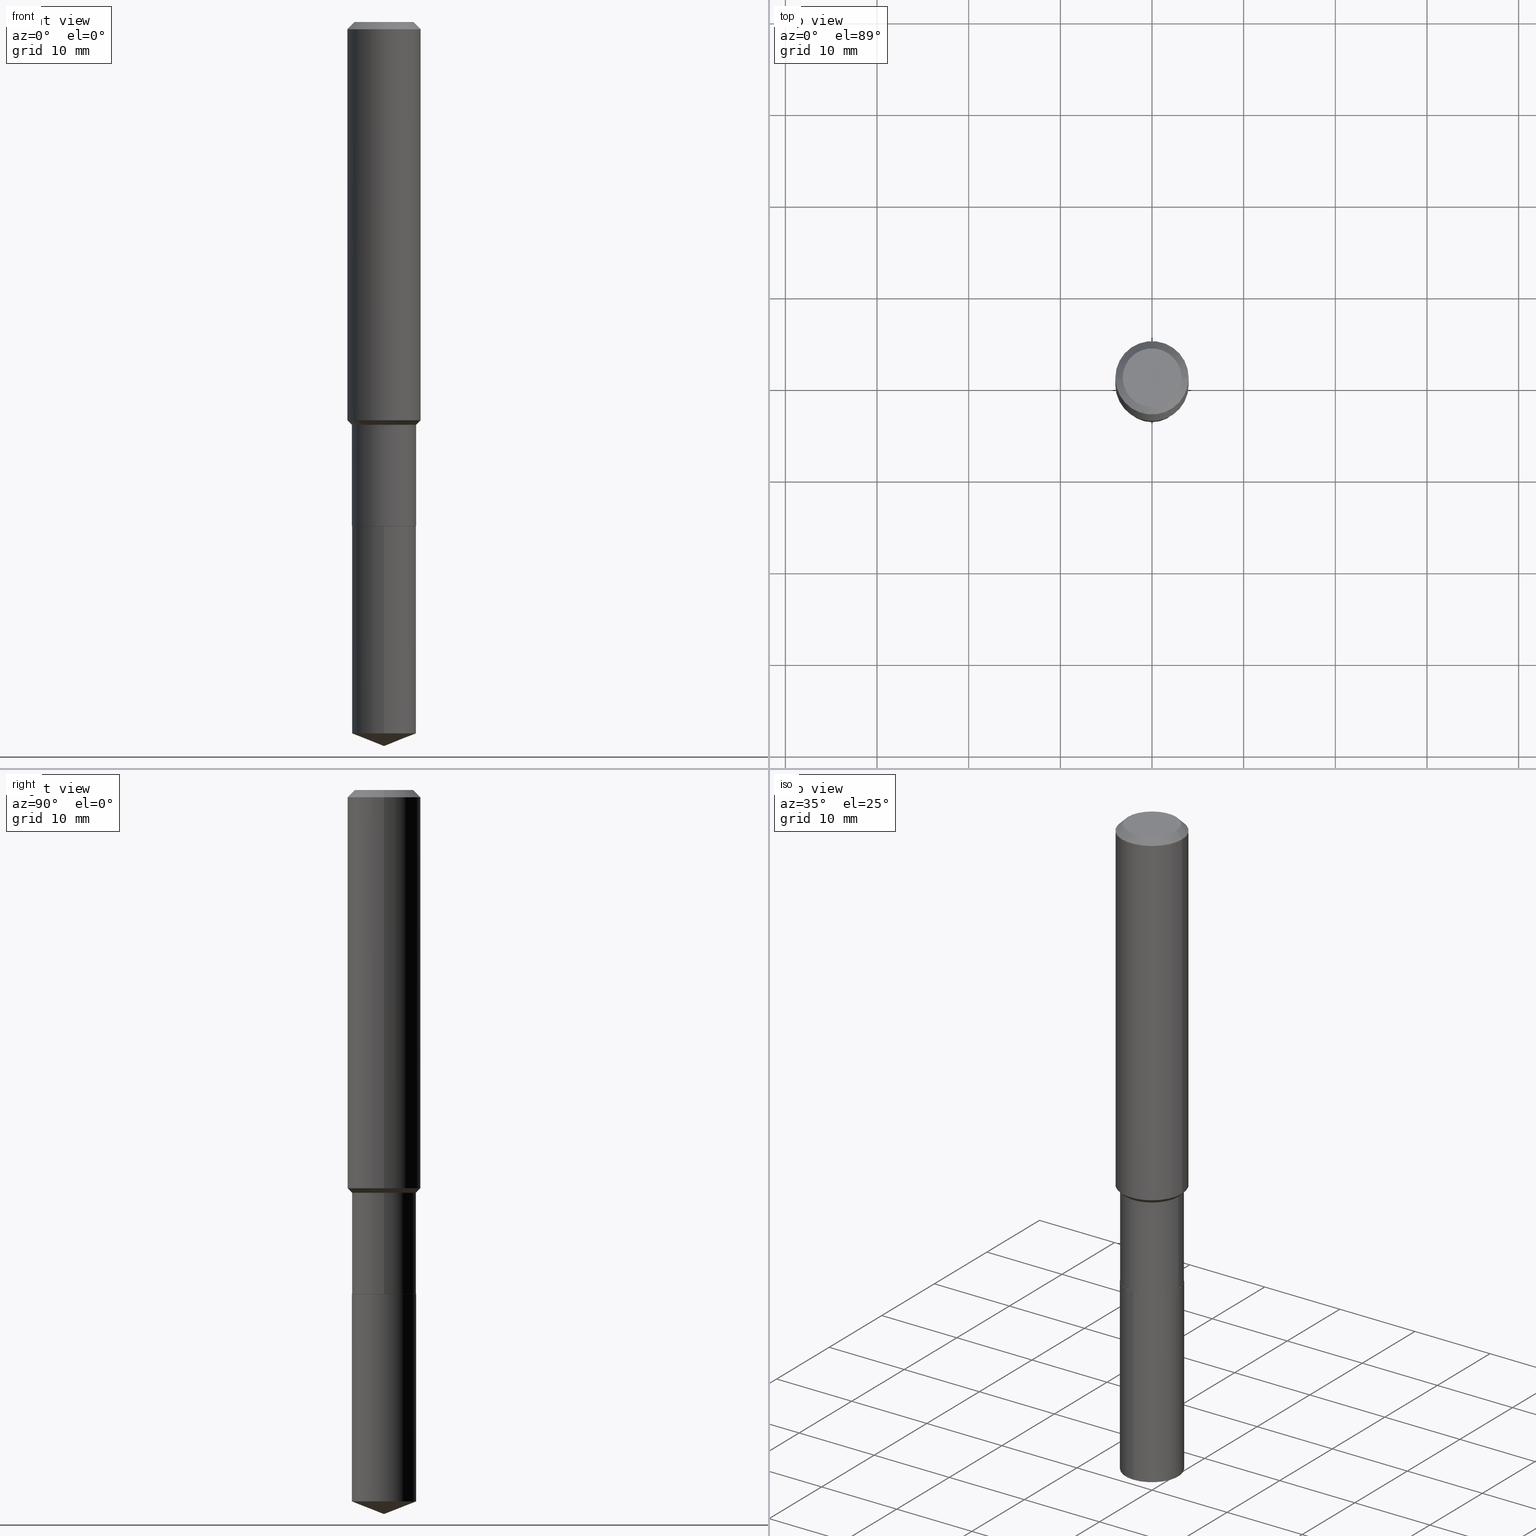
[diagram: canonical four-view strip — front | top / right | iso, engineering-drawing reading convention]
A machine part, canonical four-view strip (front | top / right | iso — engineering-drawing reading convention). The complete STEP part file that produces these views, byte-faithful:
ISO-10303-21;
HEADER;
FILE_DESCRIPTION (( 'STEP AP203' ),
    '1' );
FILE_NAME ('66440.STEP',
    '2024-04-24T22:48:12',
    ( '' ),
    ( '' ),
    'SwSTEP 2.0',
    'SolidWorks 2023',
    '' );
FILE_SCHEMA (( 'CONFIG_CONTROL_DESIGN' ));
ENDSEC;

DATA;
#1 = DIRECTION ( 'NONE',  ( -2.445468806185136597E-29, 3.491481338843145583E-15, 1.000000000000000000 ) ) ;
#2 = DIRECTION ( 'NONE',  ( 1.000000000000000000, -6.982962677686269866E-15, 0.000000000000000000 ) ) ;
#3 = EDGE_CURVE ( 'NONE', #321, #370, #175, .T. ) ;
#4 = CARTESIAN_POINT ( 'NONE',  ( -8.866673825358101725E-28, 1.266088013143874858E-13, 36.25987874015748247 ) ) ;
#5 = ORIENTED_EDGE ( 'NONE', *, *, #112, .F. ) ;
#6 = AXIS2_PLACEMENT_3D ( 'NONE', #308, #196, #268 ) ;
#7 = LINE ( 'NONE', #123, #210 ) ;
#8 = APPROVAL ( #206, 'UNSPECIFIED' ) ;
#9 = CARTESIAN_POINT ( 'NONE',  ( 4.231394675342142307E-29, -6.041310160600295064E-15, -1.730300000000000171 ) ) ;
#10 = CARTESIAN_POINT ( 'NONE',  ( -0.1575000000000000844, 1.119104808822158392E-15, -7.747322767151481189E-30 ) ) ;
#11 = EDGE_CURVE ( 'NONE', #457, #337, #403, .T. ) ;
#12 = CARTESIAN_POINT ( 'NONE',  ( 9.791278898774930393E-16, 0.1377999999999894032, -3.055919136460262475 ) ) ;
#13 =( NAMED_UNIT ( * ) PLANE_ANGLE_UNIT ( ) SI_UNIT ( $, .RADIAN. ) );
#14 = AXIS2_PLACEMENT_3D ( 'NONE', #448, #104, #255 ) ;
#15 = DIRECTION ( 'NONE',  ( 1.000000000000000000, -6.982962677686265922E-15, 0.000000000000000000 ) ) ;
#16 = ORIENTED_EDGE ( 'NONE', *, *, #11, .T. ) ;
#17 = CIRCLE ( 'NONE', #281, 0.1575000000000000011 ) ;
#18 = ORIENTED_EDGE ( 'NONE', *, *, #304, .T. ) ;
#19 = DIRECTION ( 'NONE',  ( 0.000000000000000000, 0.000000000000000000, 1.000000000000000000 ) ) ;
#20 = EDGE_CURVE ( 'NONE', #370, #337, #92, .T. ) ;
#21 = DIRECTION ( 'NONE',  ( 1.000000000000000000, -6.982962677686267499E-15, 4.876176775795936353E-29 ) ) ;
#22 = FACE_OUTER_BOUND ( 'NONE', #118, .T. ) ;
#23 = AXIS2_PLACEMENT_3D ( 'NONE', #54, #174, #97 ) ;
#24 = CIRCLE ( 'NONE', #316, 0.1575000000000001954 ) ;
#25 = CARTESIAN_POINT ( 'NONE',  ( 0.1373000000000000054, -8.518865318643388381E-15, -2.165299999999999780 ) ) ;
#26 = DIRECTION ( 'NONE',  ( 2.445321399674212117E-29, -3.491692433356646639E-15, -1.000000000000000000 ) ) ;
#27 = ORIENTED_EDGE ( 'NONE', *, *, #57, .F. ) ;
#28 = DIMENSIONAL_EXPONENTS ( 1.000000000000000000, 0.000000000000000000, 0.000000000000000000, 0.000000000000000000, 0.000000000000000000, 0.000000000000000000, 0.000000000000000000 ) ;
#29 = FACE_OUTER_BOUND ( 'NONE', #30, .T. ) ;
#30 = EDGE_LOOP ( 'NONE', ( #325, #143, #236 ) ) ;
#31 = EDGE_CURVE ( 'NONE', #96, #87, #428, .T. ) ;
#32 = LOCAL_TIME ( 18, 48, 12.00000000000000000, #273 ) ;
#33 = CARTESIAN_POINT ( 'NONE',  ( 4.231394675342142307E-29, -6.041310160600295064E-15, -1.730300000000000171 ) ) ;
#34 = DIRECTION ( 'NONE',  ( 0.7071067811865505703, -2.468850131082288615E-15, 0.7071067811865444641 ) ) ;
#35 = VECTOR ( 'NONE', #73, 39.37007874015748143 ) ;
#36 = DIRECTION ( 'NONE',  ( 1.000000000000000000, -6.982962677686268288E-15, 0.000000000000000000 ) ) ;
#37 = DIRECTION ( 'NONE',  ( -2.445321399674212677E-29, 3.491692433356646244E-15, 1.000000000000000000 ) ) ;
#38 = CYLINDRICAL_SURFACE ( 'NONE', #270, 0.1575000000000000844 ) ;
#39 = ORIENTED_EDGE ( 'NONE', *, *, #150, .T. ) ;
#40 = EDGE_CURVE ( 'NONE', #402, #101, #130, .T. ) ;
#41 = DIRECTION ( 'NONE',  ( -2.445468806185136877E-29, 3.491481338843145188E-15, 1.000000000000000000 ) ) ;
#42 = CARTESIAN_POINT ( 'NONE',  ( 0.1260000000000000009, -1.027466422270894443E-15, 3.860086710919128072E-18 ) ) ;
#43 = UNCERTAINTY_MEASURE_WITH_UNIT (LENGTH_MEASURE( 1.000000000000000082E-05 ), #453, 'distance_accuracy_value', 'NONE');
#44 = AXIS2_PLACEMENT_3D ( 'NONE', #223, #452, #224 ) ;
#45 = ADVANCED_FACE ( 'NONE', ( #240 ), #294, .T. ) ;
#46 = MANIFOLD_SOLID_BREP ( 'Body-Move/Copy2[2]', #468 ) ;
#47 = DATE_TIME_ROLE ( 'classification_date' ) ;
#48 = APPROVAL_ROLE ( '' ) ;
#49 = DIRECTION ( 'NONE',  ( -6.497071151882127725E-15, -0.9304175679820255729, 0.3665012267242943600 ) ) ;
#50 = APPROVAL_PERSON_ORGANIZATION ( #132, #8, #229 ) ;
#51 = LINE ( 'NONE', #209, #357 ) ;
#52 = AXIS2_PLACEMENT_3D ( 'NONE', #55, #212, #363 ) ;
#53 = AXIS2_PLACEMENT_3D ( 'NONE', #376, #187, #343 ) ;
#54 = CARTESIAN_POINT ( 'NONE',  ( 5.293950871629583880E-29, -7.558358802327641618E-15, -2.164800000000000058 ) ) ;
#55 = CARTESIAN_POINT ( 'NONE',  ( 7.703226739483228723E-31, -1.099816621735597661E-16, -0.03150000000000019451 ) ) ;
#56 = CARTESIAN_POINT ( 'NONE',  ( -0.1575000000000000011, 9.898349595620272334E-16, -0.03150000000000019451 ) ) ;
#57 = EDGE_CURVE ( 'NONE', #110, #370, #226, .T. ) ;
#58 = VECTOR ( 'NONE', #213, 39.37007874015748143 ) ;
#59 = CC_DESIGN_PERSON_AND_ORGANIZATION_ASSIGNMENT ( #384, #197, ( #222 ) ) ;
#60 = AXIS2_PLACEMENT_3D ( 'NONE', #207, #392, #88 ) ;
#61 = COORDINATED_UNIVERSAL_TIME_OFFSET ( 5, 0, .BEHIND. ) ;
#62 = ORIENTED_EDGE ( 'NONE', *, *, #20, .T. ) ;
#63 = EDGE_CURVE ( 'NONE', #341, #266, #462, .T. ) ;
#64 = PERSON_AND_ORGANIZATION ( #251, #359 ) ;
#65 = ORIENTED_EDGE ( 'NONE', *, *, #271, .F. ) ;
#66 = DIRECTION ( 'NONE',  ( 6.611014441532074478E-15, 0.9304175679820283484, 0.3665012267242878097 ) ) ;
#67 = DIRECTION ( 'NONE',  ( 2.438088387897960049E-29, -3.491481338843145188E-15, -1.000000000000000000 ) ) ;
#68 = DIRECTION ( 'NONE',  ( -2.445468806185136597E-29, 3.491481338843145583E-15, 1.000000000000000000 ) ) ;
#69 = CONICAL_SURFACE ( 'NONE', #352, 0.1373000000000000054, 0.7853981633975678500 ) ;
#70 = ADVANCED_FACE ( 'NONE', ( #288 ), #72, .T. ) ;
#71 = EDGE_CURVE ( 'NONE', #199, #159, #246, .T. ) ;
#72 = CONICAL_SURFACE ( 'NONE', #52, 0.1575000000000000011, 0.7853981633974449483 ) ;
#73 = DIRECTION ( 'NONE',  ( -2.445321399674212397E-29, 3.491692433356646639E-15, 1.000000000000000000 ) ) ;
#74 = FACE_OUTER_BOUND ( 'NONE', #433, .T. ) ;
#75 = COORDINATED_UNIVERSAL_TIME_OFFSET ( 5, 0, .BEHIND. ) ;
#76 = DIRECTION ( 'NONE',  ( -2.445468806185136597E-29, 3.491481338843145583E-15, 1.000000000000000000 ) ) ;
#77 = CC_DESIGN_APPROVAL ( #279, ( #135 ) ) ;
#78 = DIRECTION ( 'NONE',  ( -2.445468806185136877E-29, 3.491481338843145188E-15, 1.000000000000000000 ) ) ;
#79 = APPROVAL_STATUS ( 'not_yet_approved' ) ;
#80 = DIRECTION ( 'NONE',  ( -2.445468806185136597E-29, 3.491481338843145583E-15, 1.000000000000000000 ) ) ;
#81 = EDGE_LOOP ( 'NONE', ( #250, #291, #415 ) ) ;
#82 = ORIENTED_EDGE ( 'NONE', *, *, #165, .T. ) ;
#83 = AXIS2_PLACEMENT_3D ( 'NONE', #287, #1, #127 ) ;
#84 = AXIS2_PLACEMENT_3D ( 'NONE', #249, #148, #300 ) ;
#85 = EDGE_CURVE ( 'NONE', #429, #96, #51, .T. ) ;
#86 = ORIENTED_EDGE ( 'NONE', *, *, #219, .T. ) ;
#87 = VERTEX_POINT ( 'NONE', #354 ) ;
#88 = DIRECTION ( 'NONE',  ( -1.000000000000000000, 6.982962677686265922E-15, 0.000000000000000000 ) ) ;
#89 = ORIENTED_EDGE ( 'NONE', *, *, #312, .T. ) ;
#90 = EDGE_CURVE ( 'NONE', #159, #199, #215, .T. ) ;
#91 = DESIGN_CONTEXT ( 'detailed design', #267, 'design' ) ;
#92 = CIRCLE ( 'NONE', #232, 0.1575000000000000011 ) ;
#93 = AXIS2_PLACEMENT_3D ( 'NONE', #193, #176, #466 ) ;
#94 = MECHANICAL_CONTEXT ( 'NONE', #218, 'mechanical' ) ;
#95 = CC_DESIGN_DATE_AND_TIME_ASSIGNMENT ( #167, #47, ( #317 ) ) ;
#96 = VERTEX_POINT ( 'NONE', #137 ) ;
#97 = DIRECTION ( 'NONE',  ( 1.000000000000000000, -6.982962677686265922E-15, 0.000000000000000000 ) ) ;
#98 = FACE_OUTER_BOUND ( 'NONE', #302, .T. ) ;
#99 = CYLINDRICAL_SURFACE ( 'NONE', #84, 0.1378000000000000058 ) ;
#100 = PLANE ( 'NONE',  #164 ) ;
#101 = VERTEX_POINT ( 'NONE', #276 ) ;
#102 = CC_DESIGN_APPROVAL ( #464, ( #222 ) ) ;
#103 = FACE_OUTER_BOUND ( 'NONE', #140, .T. ) ;
#104 = DIRECTION ( 'NONE',  ( -2.445468806185136597E-29, 3.491481338843145583E-15, 1.000000000000000000 ) ) ;
#105 = FACE_OUTER_BOUND ( 'NONE', #461, .T. ) ;
#106 = DIRECTION ( 'NONE',  ( -2.445321399674212677E-29, 3.491692433356646244E-15, 1.000000000000000000 ) ) ;
#107 = AXIS2_PLACEMENT_3D ( 'NONE', #189, #37, #345 ) ;
#108 = ORIENTED_EDGE ( 'NONE', *, *, #128, .T. ) ;
#109 = DIRECTION ( 'NONE',  ( 1.000000000000000000, -6.982962677686267499E-15, 4.876176775795936353E-29 ) ) ;
#110 = VERTEX_POINT ( 'NONE', #237 ) ;
#111 = EDGE_LOOP ( 'NONE', ( #414, #297, #399, #245 ) ) ;
#112 = EDGE_CURVE ( 'NONE', #110, #149, #146, .T. ) ;
#113 = DIRECTION ( 'NONE',  ( -2.445468806185136597E-29, 3.491481338843145583E-15, 1.000000000000000000 ) ) ;
#114 = SHAPE_DEFINITION_REPRESENTATION ( #290, #319 ) ;
#115 = EDGE_CURVE ( 'NONE', #457, #321, #117, .T. ) ;
#116 = FACE_OUTER_BOUND ( 'NONE', #339, .T. ) ;
#117 = CIRCLE ( 'NONE', #183, 0.1260000000000000009 ) ;
#118 = EDGE_LOOP ( 'NONE', ( #473, #186, #154, #27 ) ) ;
#119 = COORDINATED_UNIVERSAL_TIME_OFFSET ( 5, 0, .BEHIND. ) ;
#120 = PERSON_AND_ORGANIZATION_ROLE ( 'classification_officer' ) ;
#121 = LINE ( 'NONE', #25, #243 ) ;
#122 = DIRECTION ( 'NONE',  ( 1.000000000000000000, -6.982962677686269866E-15, 0.000000000000000000 ) ) ;
#123 = CARTESIAN_POINT ( 'NONE',  ( -0.1378000000000000058, 9.791278898774180975E-16, -6.778292554371260034E-30 ) ) ;
#124 = CALENDAR_DATE ( 2024, 24, 4 ) ;
#125 = FACE_OUTER_BOUND ( 'NONE', #394, .T. ) ;
#126 = CARTESIAN_POINT ( 'NONE',  ( 0.1575000000000000011, -1.209798283909146741E-15, -0.03150000000000019451 ) ) ;
#127 = DIRECTION ( 'NONE',  ( 1.000000000000000000, -6.982962677686269866E-15, 0.000000000000000000 ) ) ;
#128 = EDGE_CURVE ( 'NONE', #266, #341, #242, .T. ) ;
#129 = FACE_OUTER_BOUND ( 'NONE', #410, .T. ) ;
#130 = CIRCLE ( 'NONE', #440, 0.1377999999999999503 ) ;
#131 = CYLINDRICAL_SURFACE ( 'NONE', #401, 0.1378000000000000058 ) ;
#132 = PERSON_AND_ORGANIZATION ( #251, #359 ) ;
#133 = DIRECTION ( 'NONE',  ( -2.445468806185136597E-29, 3.491481338843145583E-15, 1.000000000000000000 ) ) ;
#134 = ORIENTED_EDGE ( 'NONE', *, *, #489, .T. ) ;
#135 = PRODUCT_DEFINITION ( 'UNKNOWN', '', #222, #91 ) ;
#136 = CARTESIAN_POINT ( 'NONE',  ( -9.439721640706201686E-47, 1.347742071746726764E-32, 3.860086710912459732E-18 ) ) ;
#137 = CARTESIAN_POINT ( 'NONE',  ( -9.622522569850931268E-16, -0.1378000000000107195, -3.055919136460261587 ) ) ;
#138 = VECTOR ( 'NONE', #211, 39.37007874015748143 ) ;
#139 = ADVANCED_FACE ( 'NONE', ( #103 ), #100, .F. ) ;
#140 = EDGE_LOOP ( 'NONE', ( #447, #134 ) ) ;
#141 = VERTEX_POINT ( 'NONE', #12 ) ;
#142 = LINE ( 'NONE', #438, #153 ) ;
#143 = ORIENTED_EDGE ( 'NONE', *, *, #348, .T. ) ;
#144 = CARTESIAN_POINT ( 'NONE',  ( -4.719860820353100843E-47, 6.738710358733633822E-33, 1.930043355456229866E-18 ) ) ;
#145 = DIRECTION ( 'NONE',  ( -2.445468806185136597E-29, 3.491481338843145583E-15, 1.000000000000000000 ) ) ;
#146 = CIRCLE ( 'NONE', #351, 0.1575000000000001954 ) ;
#147 = ADVANCED_FACE ( 'NONE', ( #98 ), #367, .F. ) ;
#148 = DIRECTION ( 'NONE',  ( -2.445321399674212677E-29, 3.491692433356646244E-15, 1.000000000000000000 ) ) ;
#149 = VERTEX_POINT ( 'NONE', #331 ) ;
#150 = EDGE_CURVE ( 'NONE', #96, #141, #257, .T. ) ;
#151 = APPROVAL_STATUS ( 'not_yet_approved' ) ;
#152 = CARTESIAN_POINT ( 'NONE',  ( 5.295173606032675561E-29, -7.560104542997063911E-15, -2.165299999999999780 ) ) ;
#153 = VECTOR ( 'NONE', #369, 39.37007874015748143 ) ;
#154 = ORIENTED_EDGE ( 'NONE', *, *, #20, .F. ) ;
#155 = EDGE_CURVE ( 'NONE', #87, #261, #205, .T. ) ;
#156 = LOCAL_TIME ( 18, 48, 12.00000000000000000, #119 ) ;
#157 = ADVANCED_FACE ( 'NONE', ( #129 ), #371, .T. ) ;
#158 = PERSON_AND_ORGANIZATION ( #251, #359 ) ;
#159 = VERTEX_POINT ( 'NONE', #254 ) ;
#160 = DATE_AND_TIME ( #378, #330 ) ;
#161 = DIRECTION ( 'NONE',  ( -2.445468806185136877E-29, 3.491481338843145188E-15, 1.000000000000000000 ) ) ;
#162 = DIRECTION ( 'NONE',  ( -6.982962677686265922E-15, -1.000000000000000000, 3.964946289788480896E-15 ) ) ;
#163 = CYLINDRICAL_SURFACE ( 'NONE', #14, 0.1378000000000000058 ) ;
#164 = AXIS2_PLACEMENT_3D ( 'NONE', #144, #67, #375 ) ;
#165 = EDGE_CURVE ( 'NONE', #101, #402, #328, .T. ) ;
#166 = FACE_OUTER_BOUND ( 'NONE', #241, .T. ) ;
#167 = DATE_AND_TIME ( #124, #311 ) ;
#168 = CLOSED_SHELL ( 'NONE', ( #353, #214, #426, #208, #182 ) ) ;
#169 = CONICAL_SURFACE ( 'NONE', #442, 99.94676754584082801, 1.195550537616122400 ) ;
#170 = EDGE_CURVE ( 'NONE', #266, #101, #7, .T. ) ;
#171 = APPROVAL_PERSON_ORGANIZATION ( #475, #279, #48 ) ;
#172 = ORIENTED_EDGE ( 'NONE', *, *, #128, .F. ) ;
#173 = ORIENTED_EDGE ( 'NONE', *, *, #322, .T. ) ;
#174 = DIRECTION ( 'NONE',  ( -2.445468806185136597E-29, 3.491481338843145583E-15, 1.000000000000000000 ) ) ;
#175 = LINE ( 'NONE', #474, #327 ) ;
#176 = DIRECTION ( 'NONE',  ( -2.445321399674212677E-29, 3.491692433356646244E-15, 1.000000000000000000 ) ) ;
#177 = AXIS2_PLACEMENT_3D ( 'NONE', #483, #379, #459 ) ;
#178 = ADVANCED_FACE ( 'NONE', ( #166 ), #131, .T. ) ;
#179 = CARTESIAN_POINT ( 'NONE',  ( 5.295173606032675561E-29, -7.560104542997063911E-15, -2.165299999999999780 ) ) ;
#180 = CARTESIAN_POINT ( 'NONE',  ( 0.1377999999999999503, -7.003562417585462541E-15, -1.730300000000000171 ) ) ;
#181 = CYLINDRICAL_SURFACE ( 'NONE', #469, 0.1575000000000000844 ) ;
#182 = ADVANCED_FACE ( 'NONE', ( #409 ), #260, .F. ) ;
#183 = AXIS2_PLACEMENT_3D ( 'NONE', #136, #284, #427 ) ;
#184 = ORIENTED_EDGE ( 'NONE', *, *, #312, .F. ) ;
#185 = AXIS2_PLACEMENT_3D ( 'NONE', #310, #380, #383 ) ;
#186 = ORIENTED_EDGE ( 'NONE', *, *, #360, .T. ) ;
#187 = DIRECTION ( 'NONE',  ( -2.445468806185136597E-29, 3.491481338843145583E-15, 1.000000000000000000 ) ) ;
#188 = CALENDAR_DATE ( 2024, 24, 4 ) ;
#189 = CARTESIAN_POINT ( 'NONE',  ( 5.295173606032675561E-29, -7.560104542997063911E-15, -2.165299999999999780 ) ) ;
#190 = CARTESIAN_POINT ( 'NONE',  ( 5.293950871629583880E-29, -7.558358802327641618E-15, -2.164800000000000058 ) ) ;
#191 = CC_DESIGN_PERSON_AND_ORGANIZATION_ASSIGNMENT ( #64, #486, ( #222 ) ) ;
#192 = PERSON_AND_ORGANIZATION ( #251, #359 ) ;
#193 = CARTESIAN_POINT ( 'NONE',  ( 5.295173606032675561E-29, -7.560104542997063911E-15, -2.165299999999999780 ) ) ;
#194 = DIRECTION ( 'NONE',  ( 6.982962677686265922E-15, 1.000000000000000000, -3.491692433356646639E-15 ) ) ;
#195 = VECTOR ( 'NONE', #161, 39.37007874015748143 ) ;
#196 = DIRECTION ( 'NONE',  ( -2.445468806185136597E-29, 3.491481338843145583E-15, 1.000000000000000000 ) ) ;
#197 = PERSON_AND_ORGANIZATION_ROLE ( 'design_supplier' ) ;
#198 = CARTESIAN_POINT ( 'NONE',  ( 0.000000000000000000, 0.000000000000000000, 0.000000000000000000 ) ) ;
#199 = VERTEX_POINT ( 'NONE', #301 ) ;
#200 = EDGE_LOOP ( 'NONE', ( #335, #82, #307, #390 ) ) ;
#201 = ORIENTED_EDGE ( 'NONE', *, *, #71, .F. ) ;
#202 = CARTESIAN_POINT ( 'NONE',  ( 7.473023639378323914E-29, -1.066987264277799052E-14, -3.055919136460262031 ) ) ;
#203 = DIRECTION ( 'NONE',  ( -2.445468806185136597E-29, 3.491481338843145583E-15, 1.000000000000000000 ) ) ;
#204 = DIRECTION ( 'NONE',  ( 1.000000000000000000, -6.982962677686265922E-15, 0.000000000000000000 ) ) ;
#205 = CIRCLE ( 'NONE', #93, 0.1378000000000000058 ) ;
#206 = APPROVAL_STATUS ( 'not_yet_approved' ) ;
#207 = CARTESIAN_POINT ( 'NONE',  ( 7.703226739483228723E-31, -1.099816621735597661E-16, -0.03150000000000019451 ) ) ;
#208 = ADVANCED_FACE ( 'NONE', ( #416 ), #413, .T. ) ;
#209 = CARTESIAN_POINT ( 'NONE',  ( 7.605438617266735127E-29, -1.085986180622584034E-14, -3.110199999999999854 ) ) ;
#210 = VECTOR ( 'NONE', #78, 39.37007874015748143 ) ;
#211 = DIRECTION ( 'NONE',  ( -2.445468806185136877E-29, 3.491481338843145188E-15, 1.000000000000000000 ) ) ;
#212 = DIRECTION ( 'NONE',  ( 2.445468806185136597E-29, -3.491481338843145583E-15, -1.000000000000000000 ) ) ;
#213 = DIRECTION ( 'NONE',  ( -0.7071067811865451302, 2.468850131082231817E-15, -0.7071067811865499042 ) ) ;
#214 = ADVANCED_FACE ( 'NONE', ( #29 ), #424, .T. ) ;
#215 = CIRCLE ( 'NONE', #336, 0.1373000000000000054 ) ;
#216 = AXIS2_PLACEMENT_3D ( 'NONE', #422, #230, #162 ) ;
#217 = ORIENTED_EDGE ( 'NONE', *, *, #170, .F. ) ;
#218 = APPLICATION_CONTEXT ( 'configuration controlled 3d designs of mechanical parts and assemblies' ) ;
#219 = EDGE_CURVE ( 'NONE', #261, #87, #389, .T. ) ;
#220 = AXIS2_PLACEMENT_3D ( 'NONE', #303, #19, #398 ) ;
#221 = DIRECTION ( 'NONE',  ( 1.000000000000000000, -6.982962677686265922E-15, 0.000000000000000000 ) ) ;
#222 = PRODUCT_DEFINITION_FORMATION_WITH_SPECIFIED_SOURCE ( 'ANY', '', #318, .NOT_KNOWN. ) ;
#223 = CARTESIAN_POINT ( 'NONE',  ( 5.295173606032675561E-29, -7.560104542997063911E-15, -2.165299999999999780 ) ) ;
#224 = DIRECTION ( 'NONE',  ( -6.982962677686265922E-15, -1.000000000000000000, 3.964946289788480896E-15 ) ) ;
#225 = VECTOR ( 'NONE', #235, 39.37007874015748143 ) ;
#226 = LINE ( 'NONE', #386, #315 ) ;
#227 = LINE ( 'NONE', #443, #35 ) ;
#228 = EDGE_CURVE ( 'NONE', #402, #110, #460, .T. ) ;
#229 = APPROVAL_ROLE ( '' ) ;
#230 = DIRECTION ( 'NONE',  ( -2.445321399674212677E-29, 3.491692433356646244E-15, 1.000000000000000000 ) ) ;
#231 = ADVANCED_FACE ( 'NONE', ( #347 ), #234, .T. ) ;
#232 = AXIS2_PLACEMENT_3D ( 'NONE', #365, #265, #471 ) ;
#233 = ORIENTED_EDGE ( 'NONE', *, *, #40, .T. ) ;
#234 = CONICAL_SURFACE ( 'NONE', #6, 0.1377999999999999503, 0.7853981633974526089 ) ;
#235 = DIRECTION ( 'NONE',  ( -2.445321399674212397E-29, 3.491692433356646639E-15, 1.000000000000000000 ) ) ;
#236 = ORIENTED_EDGE ( 'NONE', *, *, #150, .F. ) ;
#237 = CARTESIAN_POINT ( 'NONE',  ( 0.1575000000000001954, -7.072344599960672937E-15, -1.710600000000000120 ) ) ;
#238 = ORIENTED_EDGE ( 'NONE', *, *, #115, .F. ) ;
#239 = ORIENTED_EDGE ( 'NONE', *, *, #478, .T. ) ;
#240 = FACE_OUTER_BOUND ( 'NONE', #111, .T. ) ;
#241 = EDGE_LOOP ( 'NONE', ( #407, #247, #368, #485 ) ) ;
#242 = CIRCLE ( 'NONE', #23, 0.1378000000000000058 ) ;
#243 = VECTOR ( 'NONE', #296, 39.37007874015748143 ) ;
#244 = DIRECTION ( 'NONE',  ( 0.7071067811865451302, -7.319954787623248157E-15, -0.7071067811865499042 ) ) ;
#245 = ORIENTED_EDGE ( 'NONE', *, *, #322, .F. ) ;
#246 = CIRCLE ( 'NONE', #83, 0.1373000000000000054 ) ;
#247 = ORIENTED_EDGE ( 'NONE', *, *, #170, .T. ) ;
#248 = EDGE_LOOP ( 'NONE', ( #65, #18, #449, #285 ) ) ;
#249 = CARTESIAN_POINT ( 'NONE',  ( 5.295173606032675561E-29, -7.560104542997063911E-15, -2.165299999999999780 ) ) ;
#250 = ORIENTED_EDGE ( 'NONE', *, *, #348, .F. ) ;
#251 = PERSON ( 'UNSPECIFIED', 'UNSPECIFIED', 'UNSPECIFIED', ('UNSPECIFIED'), ('UNSPECIFIED'), ('UNSPECIFIED') ) ;
#252 = ADVANCED_FACE ( 'NONE', ( #116 ), #295, .T. ) ;
#253 = CARTESIAN_POINT ( 'NONE',  ( 0.1378000000000000058, -8.520611059312809095E-15, -2.164800000000000058 ) ) ;
#254 = CARTESIAN_POINT ( 'NONE',  ( -0.1373000000000000054, -6.581880139624335314E-15, -2.165299999999999780 ) ) ;
#255 = DIRECTION ( 'NONE',  ( 1.000000000000000000, -6.982962677686265922E-15, 4.876176775795934672E-29 ) ) ;
#256 = ADVANCED_FACE ( 'NONE', ( #125 ), #38, .T. ) ;
#257 = CIRCLE ( 'NONE', #216, 0.1378000000000000058 ) ;
#258 = CARTESIAN_POINT ( 'NONE',  ( 7.605438617266735127E-29, -1.085986180622584192E-14, -3.110199999999999854 ) ) ;
#259 = ADVANCED_FACE ( 'NONE', ( #105 ), #69, .T. ) ;
#260 = PLANE ( 'NONE',  #477 ) ;
#261 = VERTEX_POINT ( 'NONE', #417 ) ;
#262 = CARTESIAN_POINT ( 'NONE',  ( -0.1260000000000000009, 9.348441284752484904E-16, 3.860086710906114178E-18 ) ) ;
#263 = APPROVAL_DATE_TIME ( #458, #8 ) ;
#264 = DIRECTION ( 'NONE',  ( -2.445468806185136597E-29, 3.491481338843145583E-15, 1.000000000000000000 ) ) ;
#265 = DIRECTION ( 'NONE',  ( -2.445468806185136597E-29, 3.491481338843145583E-15, 1.000000000000000000 ) ) ;
#266 = VERTEX_POINT ( 'NONE', #350 ) ;
#267 = APPLICATION_CONTEXT ( 'configuration controlled 3d designs of mechanical parts and assemblies' ) ;
#268 = DIRECTION ( 'NONE',  ( 1.000000000000000000, -6.982962677686268288E-15, 0.000000000000000000 ) ) ;
#269 = AXIS2_PLACEMENT_3D ( 'NONE', #190, #342, #204 ) ;
#270 = AXIS2_PLACEMENT_3D ( 'NONE', #198, #80, #21 ) ;
#271 = EDGE_CURVE ( 'NONE', #141, #261, #227, .T. ) ;
#272 = DIRECTION ( 'NONE',  ( -6.982962677686265133E-15, -1.000000000000000000, 3.498627837349974246E-15 ) ) ;
#273 = COORDINATED_UNIVERSAL_TIME_OFFSET ( 5, 0, .BEHIND. ) ;
#274 = COORDINATED_UNIVERSAL_TIME_OFFSET ( 5, 0, .BEHIND. ) ;
#275 = CARTESIAN_POINT ( 'NONE',  ( 7.606082573554659811E-29, -1.085894764032567561E-14, -3.110199999999999854 ) ) ;
#276 = CARTESIAN_POINT ( 'NONE',  ( -0.1377999999999999503, -5.820706591586550441E-15, -1.730300000000000171 ) ) ;
#277 = CALENDAR_DATE ( 2024, 24, 4 ) ;
#278 = LINE ( 'NONE', #441, #358 ) ;
#279 = APPROVAL ( #79, 'UNSPECIFIED' ) ;
#280 = CARTESIAN_POINT ( 'NONE',  ( -9.622522569851146233E-16, -0.1378000000000075831, -2.165299999999999336 ) ) ;
#281 = AXIS2_PLACEMENT_3D ( 'NONE', #419, #76, #373 ) ;
#282 = DIRECTION ( 'NONE',  ( 1.000000000000000000, -6.982962677686268288E-15, 0.000000000000000000 ) ) ;
#283 = ORIENTED_EDGE ( 'NONE', *, *, #57, .T. ) ;
#284 = DIRECTION ( 'NONE',  ( -2.445468806185136597E-29, 3.491481338843145583E-15, 1.000000000000000000 ) ) ;
#285 = ORIENTED_EDGE ( 'NONE', *, *, #219, .F. ) ;
#286 = EDGE_LOOP ( 'NONE', ( #364, #238, #16, #89 ) ) ;
#287 = CARTESIAN_POINT ( 'NONE',  ( 5.295173606032675561E-29, -7.560104542997063911E-15, -2.165299999999999780 ) ) ;
#288 = FACE_OUTER_BOUND ( 'NONE', #286, .T. ) ;
#289 = AXIS2_PLACEMENT_3D ( 'NONE', #33, #264, #36 ) ;
#290 = PRODUCT_DEFINITION_SHAPE ( 'NONE', 'NONE',  #135 ) ;
#291 = ORIENTED_EDGE ( 'NONE', *, *, #85, .T. ) ;
#292 = ORIENTED_EDGE ( 'NONE', *, *, #155, .T. ) ;
#293 = EDGE_CURVE ( 'NONE', #341, #402, #298, .T. ) ;
#294 = CONICAL_SURFACE ( 'NONE', #423, 0.1373000000000000054, 0.7853981633975678500 ) ;
#295 = CONICAL_SURFACE ( 'NONE', #60, 0.1575000000000000011, 0.7853981633974449483 ) ;
#296 = DIRECTION ( 'NONE',  ( 0.7071067811866320607, -2.468850131083142557E-15, 0.7071067811864629737 ) ) ;
#297 = ORIENTED_EDGE ( 'NONE', *, *, #396, .T. ) ;
#298 = LINE ( 'NONE', #408, #195 ) ;
#299 = EDGE_LOOP ( 'NONE', ( #292, #86 ) ) ;
#300 = DIRECTION ( 'NONE',  ( -6.982962677686265922E-15, -1.000000000000000000, 3.964946289788480896E-15 ) ) ;
#301 = CARTESIAN_POINT ( 'NONE',  ( 0.1373000000000000054, -8.518865318643388381E-15, -2.165299999999999780 ) ) ;
#302 = EDGE_LOOP ( 'NONE', ( #201, #326 ) ) ;
#303 = CARTESIAN_POINT ( 'NONE',  ( 0.000000000000000000, 0.000000000000000000, 0.000000000000000000 ) ) ;
#304 = EDGE_CURVE ( 'NONE', #141, #96, #456, .T. ) ;
#305 = APPROVAL_ROLE ( '' ) ;
#306 = VECTOR ( 'NONE', #66, 39.37007874015748143 ) ;
#307 = ORIENTED_EDGE ( 'NONE', *, *, #228, .T. ) ;
#308 = CARTESIAN_POINT ( 'NONE',  ( 4.231394675342142307E-29, -6.041310160600295064E-15, -1.730300000000000171 ) ) ;
#309 = LOCAL_TIME ( 18, 48, 12.00000000000000000, #61 ) ;
#310 = CARTESIAN_POINT ( 'NONE',  ( -8.866673825358101725E-28, 1.266088013143874858E-13, 36.25987874015748247 ) ) ;
#311 = LOCAL_TIME ( 18, 48, 12.00000000000000000, #274 ) ;
#312 = EDGE_CURVE ( 'NONE', #337, #370, #17, .T. ) ;
#313 = PERSON_AND_ORGANIZATION_ROLE ( 'creator' ) ;
#314 = DIRECTION ( 'NONE',  ( -2.445321399674212677E-29, 3.491692433356646244E-15, 1.000000000000000000 ) ) ;
#315 = VECTOR ( 'NONE', #41, 39.37007874015748143 ) ;
#316 = AXIS2_PLACEMENT_3D ( 'NONE', #411, #68, #221 ) ;
#317 = SECURITY_CLASSIFICATION ( '', '', #391 ) ;
#318 = PRODUCT ( '66440', '66440', '', ( #94 ) ) ;
#319 = ADVANCED_BREP_SHAPE_REPRESENTATION ( '66440', ( #372, #46, #220 ), #481 ) ;
#320 = DIRECTION ( 'NONE',  ( -2.445468806185136597E-29, 3.491481338843145583E-15, 1.000000000000000000 ) ) ;
#321 = VERTEX_POINT ( 'NONE', #42 ) ;
#322 = EDGE_CURVE ( 'NONE', #199, #341, #121, .T. ) ;
#323 = DIRECTION ( 'NONE',  ( 1.000000000000000000, -6.982962677686269866E-15, 0.000000000000000000 ) ) ;
#324 = ORIENTED_EDGE ( 'NONE', *, *, #11, .F. ) ;
#325 = ORIENTED_EDGE ( 'NONE', *, *, #85, .F. ) ;
#326 = ORIENTED_EDGE ( 'NONE', *, *, #90, .F. ) ;
#327 = VECTOR ( 'NONE', #244, 39.37007874015748143 ) ;
#328 = CIRCLE ( 'NONE', #289, 0.1377999999999999503 ) ;
#329 = ORIENTED_EDGE ( 'NONE', *, *, #293, .T. ) ;
#330 = LOCAL_TIME ( 18, 48, 12.00000000000000000, #75 ) ;
#331 = CARTESIAN_POINT ( 'NONE',  ( -0.1575000000000001954, -4.853423169402925487E-15, -1.710600000000000120 ) ) ;
#332 = PERSON_AND_ORGANIZATION ( #251, #359 ) ;
#333 = DATE_AND_TIME ( #188, #309 ) ;
#334 = DIRECTION ( 'NONE',  ( -6.982962677686265922E-15, -1.000000000000000000, 3.964946289788480896E-15 ) ) ;
#335 = ORIENTED_EDGE ( 'NONE', *, *, #388, .F. ) ;
#336 = AXIS2_PLACEMENT_3D ( 'NONE', #472, #203, #122 ) ;
#337 = VERTEX_POINT ( 'NONE', #482 ) ;
#338 = LENGTH_MEASURE_WITH_UNIT ( LENGTH_MEASURE( 0.02539999999999999897 ), #412 );
#339 = EDGE_LOOP ( 'NONE', ( #465, #437, #62, #324 ) ) ;
#340 = PERSON_AND_ORGANIZATION ( #251, #359 ) ;
#341 = VERTEX_POINT ( 'NONE', #253 ) ;
#342 = DIRECTION ( 'NONE',  ( -2.445468806185136597E-29, 3.491481338843145583E-15, 1.000000000000000000 ) ) ;
#343 = DIRECTION ( 'NONE',  ( 1.000000000000000000, -6.982962677686265922E-15, 4.876281427513067258E-29 ) ) ;
#344 = APPROVAL_DATE_TIME ( #333, #464 ) ;
#345 = DIRECTION ( 'NONE',  ( -6.982962677686265922E-15, -1.000000000000000000, 3.964946289788480896E-15 ) ) ;
#346 = DATE_AND_TIME ( #454, #156 ) ;
#347 = FACE_OUTER_BOUND ( 'NONE', #200, .T. ) ;
#348 = EDGE_CURVE ( 'NONE', #429, #141, #387, .T. ) ;
#349 = FACE_OUTER_BOUND ( 'NONE', #81, .T. ) ;
#350 = CARTESIAN_POINT ( 'NONE',  ( -0.1378000000000000336, -5.820706591586550441E-15, -2.164800000000000058 ) ) ;
#351 = AXIS2_PLACEMENT_3D ( 'NONE', #395, #356, #15 ) ;
#352 = AXIS2_PLACEMENT_3D ( 'NONE', #420, #145, #2 ) ;
#353 = ADVANCED_FACE ( 'NONE', ( #484 ), #99, .T. ) ;
#354 = CARTESIAN_POINT ( 'NONE',  ( -9.622522569851146233E-16, -0.1378000000000075831, -2.165299999999999336 ) ) ;
#355 = DIRECTION ( 'NONE',  ( 1.000000000000000000, -6.982962677686265922E-15, 4.876176775795934672E-29 ) ) ;
#356 = DIRECTION ( 'NONE',  ( -2.445468806185136597E-29, 3.491481338843145583E-15, 1.000000000000000000 ) ) ;
#357 = VECTOR ( 'NONE', #49, 39.37007874015748143 ) ;
#358 = VECTOR ( 'NONE', #480, 39.37007874015748143 ) ;
#359 = ORGANIZATION ( 'UNSPECIFIED', 'UNSPECIFIED', '' ) ;
#360 = EDGE_CURVE ( 'NONE', #149, #337, #451, .T. ) ;
#361 = ORIENTED_EDGE ( 'NONE', *, *, #360, .F. ) ;
#362 = ORIENTED_EDGE ( 'NONE', *, *, #31, .F. ) ;
#363 = DIRECTION ( 'NONE',  ( -1.000000000000000000, 6.982962677686265922E-15, 0.000000000000000000 ) ) ;
#364 = ORIENTED_EDGE ( 'NONE', *, *, #3, .F. ) ;
#365 = CARTESIAN_POINT ( 'NONE',  ( 7.703226739483228723E-31, -1.099816621735597661E-16, -0.03150000000000019451 ) ) ;
#366 = CC_DESIGN_DATE_AND_TIME_ASSIGNMENT ( #346, #406, ( #135 ) ) ;
#367 = PLANE ( 'NONE',  #430 ) ;
#368 = ORIENTED_EDGE ( 'NONE', *, *, #40, .F. ) ;
#369 = DIRECTION ( 'NONE',  ( -0.7071067811866320607, 7.493145998870660238E-15, 0.7071067811864629737 ) ) ;
#370 = VERTEX_POINT ( 'NONE', #126 ) ;
#371 = CONICAL_SURFACE ( 'NONE', #177, 0.1377999999999999503, 0.7853981633974526089 ) ;
#372 = MANIFOLD_SOLID_BREP ( 'Body-Move/Copy2[1]', #168 ) ;
#373 = DIRECTION ( 'NONE',  ( 1.000000000000000000, -6.982962677686265922E-15, 0.000000000000000000 ) ) ;
#374 = ORIENTED_EDGE ( 'NONE', *, *, #271, .T. ) ;
#375 = DIRECTION ( 'NONE',  ( -1.000000000000000000, 6.982962677686265922E-15, -4.876176775795935793E-29 ) ) ;
#376 = CARTESIAN_POINT ( 'NONE',  ( -9.439721640706201686E-47, 1.347742071746726764E-32, 3.860086710912459732E-18 ) ) ;
#377 =( NAMED_UNIT ( * ) SI_UNIT ( $, .STERADIAN. ) SOLID_ANGLE_UNIT ( ) );
#378 = CALENDAR_DATE ( 2024, 24, 4 ) ;
#379 = DIRECTION ( 'NONE',  ( -2.445468806185136597E-29, 3.491481338843145583E-15, 1.000000000000000000 ) ) ;
#380 = DIRECTION ( 'NONE',  ( -2.445321399674212677E-29, 3.491692433356646244E-15, 1.000000000000000000 ) ) ;
#381 = CC_DESIGN_PERSON_AND_ORGANIZATION_ASSIGNMENT ( #192, #313, ( #135 ) ) ;
#382 = PERSON_AND_ORGANIZATION_ROLE ( 'design_owner' ) ;
#383 = DIRECTION ( 'NONE',  ( -6.982962677686265133E-15, -1.000000000000000000, 3.498627837349974246E-15 ) ) ;
#384 = PERSON_AND_ORGANIZATION ( #251, #359 ) ;
#385 = ORIENTED_EDGE ( 'NONE', *, *, #155, .F. ) ;
#386 = CARTESIAN_POINT ( 'NONE',  ( 0.1575000000000000844, -1.099816621735587677E-15, 7.679978421878603638E-30 ) ) ;
#387 = LINE ( 'NONE', #275, #306 ) ;
#388 = EDGE_CURVE ( 'NONE', #101, #149, #278, .T. ) ;
#389 = CIRCLE ( 'NONE', #107, 0.1378000000000000058 ) ;
#390 = ORIENTED_EDGE ( 'NONE', *, *, #478, .F. ) ;
#391 = SECURITY_CLASSIFICATION_LEVEL ( 'unclassified' ) ;
#392 = DIRECTION ( 'NONE',  ( 2.445468806185136597E-29, -3.491481338843145583E-15, -1.000000000000000000 ) ) ;
#393 = APPLICATION_PROTOCOL_DEFINITION ( 'international standard', 'config_control_design', 1994, #267 ) ;
#394 = EDGE_LOOP ( 'NONE', ( #361, #239, #283, #184 ) ) ;
#395 = CARTESIAN_POINT ( 'NONE',  ( 4.183218939860295010E-29, -5.972527978225084668E-15, -1.710600000000000120 ) ) ;
#396 = EDGE_CURVE ( 'NONE', #159, #266, #142, .T. ) ;
#397 = CC_DESIGN_APPROVAL ( #8, ( #317 ) ) ;
#398 = DIRECTION ( 'NONE',  ( 1.000000000000000000, 0.000000000000000000, 0.000000000000000000 ) ) ;
#399 = ORIENTED_EDGE ( 'NONE', *, *, #63, .F. ) ;
#400 = DIRECTION ( 'NONE',  ( -2.445468806185136597E-29, 3.491481338843145583E-15, 1.000000000000000000 ) ) ;
#401 = AXIS2_PLACEMENT_3D ( 'NONE', #425, #133, #355 ) ;
#402 = VERTEX_POINT ( 'NONE', #180 ) ;
#403 = LINE ( 'NONE', #56, #58 ) ;
#404 = CC_DESIGN_SECURITY_CLASSIFICATION ( #317, ( #222 ) ) ;
#405 = ORIENTED_EDGE ( 'NONE', *, *, #388, .T. ) ;
#406 = DATE_TIME_ROLE ( 'creation_date' ) ;
#407 = ORIENTED_EDGE ( 'NONE', *, *, #63, .T. ) ;
#408 = CARTESIAN_POINT ( 'NONE',  ( 0.1378000000000000058, -9.622522569851674770E-16, 6.719371597046798536E-30 ) ) ;
#409 = FACE_OUTER_BOUND ( 'NONE', #299, .T. ) ;
#410 = EDGE_LOOP ( 'NONE', ( #233, #405, #5, #436 ) ) ;
#411 = CARTESIAN_POINT ( 'NONE',  ( 4.183218939860295010E-29, -5.972527978225084668E-15, -1.710600000000000120 ) ) ;
#412 =( LENGTH_UNIT ( ) NAMED_UNIT ( * ) SI_UNIT ( $, .METRE. ) );
#413 = CYLINDRICAL_SURFACE ( 'NONE', #44, 0.1378000000000000058 ) ;
#414 = ORIENTED_EDGE ( 'NONE', *, *, #71, .T. ) ;
#415 = ORIENTED_EDGE ( 'NONE', *, *, #304, .F. ) ;
#416 = FACE_OUTER_BOUND ( 'NONE', #248, .T. ) ;
#417 = CARTESIAN_POINT ( 'NONE',  ( 9.791278898774928420E-16, 0.1377999999999924563, -2.165300000000000669 ) ) ;
#418 = ORIENTED_EDGE ( 'NONE', *, *, #90, .T. ) ;
#419 = CARTESIAN_POINT ( 'NONE',  ( 7.703226739483228723E-31, -1.099816621735597661E-16, -0.03150000000000019451 ) ) ;
#420 = CARTESIAN_POINT ( 'NONE',  ( 5.295173606032675561E-29, -7.560104542997063911E-15, -2.165299999999999780 ) ) ;
#421 = ADVANCED_FACE ( 'NONE', ( #22 ), #181, .T. ) ;
#422 = CARTESIAN_POINT ( 'NONE',  ( 7.473023639378323914E-29, -1.066987264277799052E-14, -3.055919136460262031 ) ) ;
#423 = AXIS2_PLACEMENT_3D ( 'NONE', #470, #400, #323 ) ;
#424 = CONICAL_SURFACE ( 'NONE', #185, 99.94676754584082801, 1.195550537616122400 ) ;
#425 = CARTESIAN_POINT ( 'NONE',  ( 0.000000000000000000, 0.000000000000000000, 0.000000000000000000 ) ) ;
#426 = ADVANCED_FACE ( 'NONE', ( #349 ), #169, .T. ) ;
#427 = DIRECTION ( 'NONE',  ( 1.000000000000000000, -6.982962677686265922E-15, 4.876281427513067258E-29 ) ) ;
#428 = LINE ( 'NONE', #280, #225 ) ;
#429 = VERTEX_POINT ( 'NONE', #258 ) ;
#430 = AXIS2_PLACEMENT_3D ( 'NONE', #179, #450, #446 ) ;
#431 = CIRCLE ( 'NONE', #53, 0.1260000000000000009 ) ;
#432 = EDGE_LOOP ( 'NONE', ( #39, #374, #385, #362 ) ) ;
#433 = EDGE_LOOP ( 'NONE', ( #217, #108, #329, #439 ) ) ;
#434 = ADVANCED_FACE ( 'NONE', ( #74 ), #163, .T. ) ;
#435 = APPROVAL_PERSON_ORGANIZATION ( #340, #464, #305 ) ;
#436 = ORIENTED_EDGE ( 'NONE', *, *, #228, .F. ) ;
#437 = ORIENTED_EDGE ( 'NONE', *, *, #3, .T. ) ;
#438 = CARTESIAN_POINT ( 'NONE',  ( -0.1373000000000000054, -6.584529366798445726E-15, -2.165299999999999780 ) ) ;
#439 = ORIENTED_EDGE ( 'NONE', *, *, #165, .F. ) ;
#440 = AXIS2_PLACEMENT_3D ( 'NONE', #9, #320, #282 ) ;
#441 = CARTESIAN_POINT ( 'NONE',  ( -0.1377999999999999503, -5.062182270722877558E-15, -1.730300000000000171 ) ) ;
#442 = AXIS2_PLACEMENT_3D ( 'NONE', #4, #106, #272 ) ;
#443 = CARTESIAN_POINT ( 'NONE',  ( 9.791278898774709511E-16, 0.1377999999999924563, -2.165300000000000669 ) ) ;
#444 = CC_DESIGN_PERSON_AND_ORGANIZATION_ASSIGNMENT ( #158, #120, ( #317 ) ) ;
#445 = CARTESIAN_POINT ( 'NONE',  ( 0.000000000000000000, 0.000000000000000000, 0.000000000000000000 ) ) ;
#446 = DIRECTION ( 'NONE',  ( 1.000000000000000000, -6.982962677686265922E-15, 4.876176775795935793E-29 ) ) ;
#447 = ORIENTED_EDGE ( 'NONE', *, *, #115, .T. ) ;
#448 = CARTESIAN_POINT ( 'NONE',  ( 0.000000000000000000, 0.000000000000000000, 0.000000000000000000 ) ) ;
#449 = ORIENTED_EDGE ( 'NONE', *, *, #31, .T. ) ;
#450 = DIRECTION ( 'NONE',  ( -2.438088387897960049E-29, 3.491481338843145188E-15, 1.000000000000000000 ) ) ;
#451 = LINE ( 'NONE', #10, #138 ) ;
#452 = DIRECTION ( 'NONE',  ( -2.445321399674212677E-29, 3.491692433356646244E-15, 1.000000000000000000 ) ) ;
#453 =( CONVERSION_BASED_UNIT ( 'INCH', #338 ) LENGTH_UNIT ( ) NAMED_UNIT ( #28 ) );
#454 = CALENDAR_DATE ( 2024, 24, 4 ) ;
#455 = CC_DESIGN_PERSON_AND_ORGANIZATION_ASSIGNMENT ( #332, #382, ( #318 ) ) ;
#456 = CIRCLE ( 'NONE', #463, 0.1378000000000000058 ) ;
#457 = VERTEX_POINT ( 'NONE', #262 ) ;
#458 = DATE_AND_TIME ( #277, #32 ) ;
#459 = DIRECTION ( 'NONE',  ( 1.000000000000000000, -6.982962677686268288E-15, 0.000000000000000000 ) ) ;
#460 = LINE ( 'NONE', #488, #490 ) ;
#461 = EDGE_LOOP ( 'NONE', ( #479, #418, #173, #172 ) ) ;
#462 = CIRCLE ( 'NONE', #269, 0.1378000000000000058 ) ;
#463 = AXIS2_PLACEMENT_3D ( 'NONE', #202, #314, #334 ) ;
#464 = APPROVAL ( #151, 'UNSPECIFIED' ) ;
#465 = ORIENTED_EDGE ( 'NONE', *, *, #489, .F. ) ;
#466 = DIRECTION ( 'NONE',  ( -6.982962677686265922E-15, -1.000000000000000000, 3.964946289788480896E-15 ) ) ;
#467 = PRODUCT_RELATED_PRODUCT_CATEGORY ( 'detail', '', ( #318 ) ) ;
#468 = CLOSED_SHELL ( 'NONE', ( #45, #252, #421, #157, #178, #434, #231, #256, #70, #139, #147, #259 ) ) ;
#469 = AXIS2_PLACEMENT_3D ( 'NONE', #445, #113, #109 ) ;
#470 = CARTESIAN_POINT ( 'NONE',  ( 5.295173606032675561E-29, -7.560104542997063911E-15, -2.165299999999999780 ) ) ;
#471 = DIRECTION ( 'NONE',  ( 1.000000000000000000, -6.982962677686265922E-15, 0.000000000000000000 ) ) ;
#472 = CARTESIAN_POINT ( 'NONE',  ( 5.295173606032675561E-29, -7.560104542997063911E-15, -2.165299999999999780 ) ) ;
#473 = ORIENTED_EDGE ( 'NONE', *, *, #112, .T. ) ;
#474 = CARTESIAN_POINT ( 'NONE',  ( 0.1575000000000000011, -1.190510096822576026E-15, -0.03150000000000019451 ) ) ;
#475 = PERSON_AND_ORGANIZATION ( #251, #359 ) ;
#476 = APPLICATION_PROTOCOL_DEFINITION ( 'international standard', 'config_control_design', 1994, #218 ) ;
#477 = AXIS2_PLACEMENT_3D ( 'NONE', #152, #26, #194 ) ;
#478 = EDGE_CURVE ( 'NONE', #149, #110, #24, .T. ) ;
#479 = ORIENTED_EDGE ( 'NONE', *, *, #396, .F. ) ;
#480 = DIRECTION ( 'NONE',  ( -0.7071067811865505703, 7.493145998870365204E-15, 0.7071067811865444641 ) ) ;
#481 =( GEOMETRIC_REPRESENTATION_CONTEXT ( 3 ) GLOBAL_UNCERTAINTY_ASSIGNED_CONTEXT ( ( #43 ) ) GLOBAL_UNIT_ASSIGNED_CONTEXT ( ( #453, #13, #377 ) ) REPRESENTATION_CONTEXT ( 'NONE', 'WORKASPACE' ) );
#482 = CARTESIAN_POINT ( 'NONE',  ( -0.1575000000000000011, -1.922150011377162882E-15, -0.03150000000000019451 ) ) ;
#483 = CARTESIAN_POINT ( 'NONE',  ( 4.231394675342142307E-29, -6.041310160600295064E-15, -1.730300000000000171 ) ) ;
#484 = FACE_OUTER_BOUND ( 'NONE', #432, .T. ) ;
#485 = ORIENTED_EDGE ( 'NONE', *, *, #293, .F. ) ;
#486 = PERSON_AND_ORGANIZATION_ROLE ( 'creator' ) ;
#487 = APPROVAL_DATE_TIME ( #160, #279 ) ;
#488 = CARTESIAN_POINT ( 'NONE',  ( 0.1377999999999999503, -7.003562417585462541E-15, -1.730300000000000171 ) ) ;
#489 = EDGE_CURVE ( 'NONE', #321, #457, #431, .T. ) ;
#490 = VECTOR ( 'NONE', #34, 39.37007874015748143 ) ;
ENDSEC;
END-ISO-10303-21;
